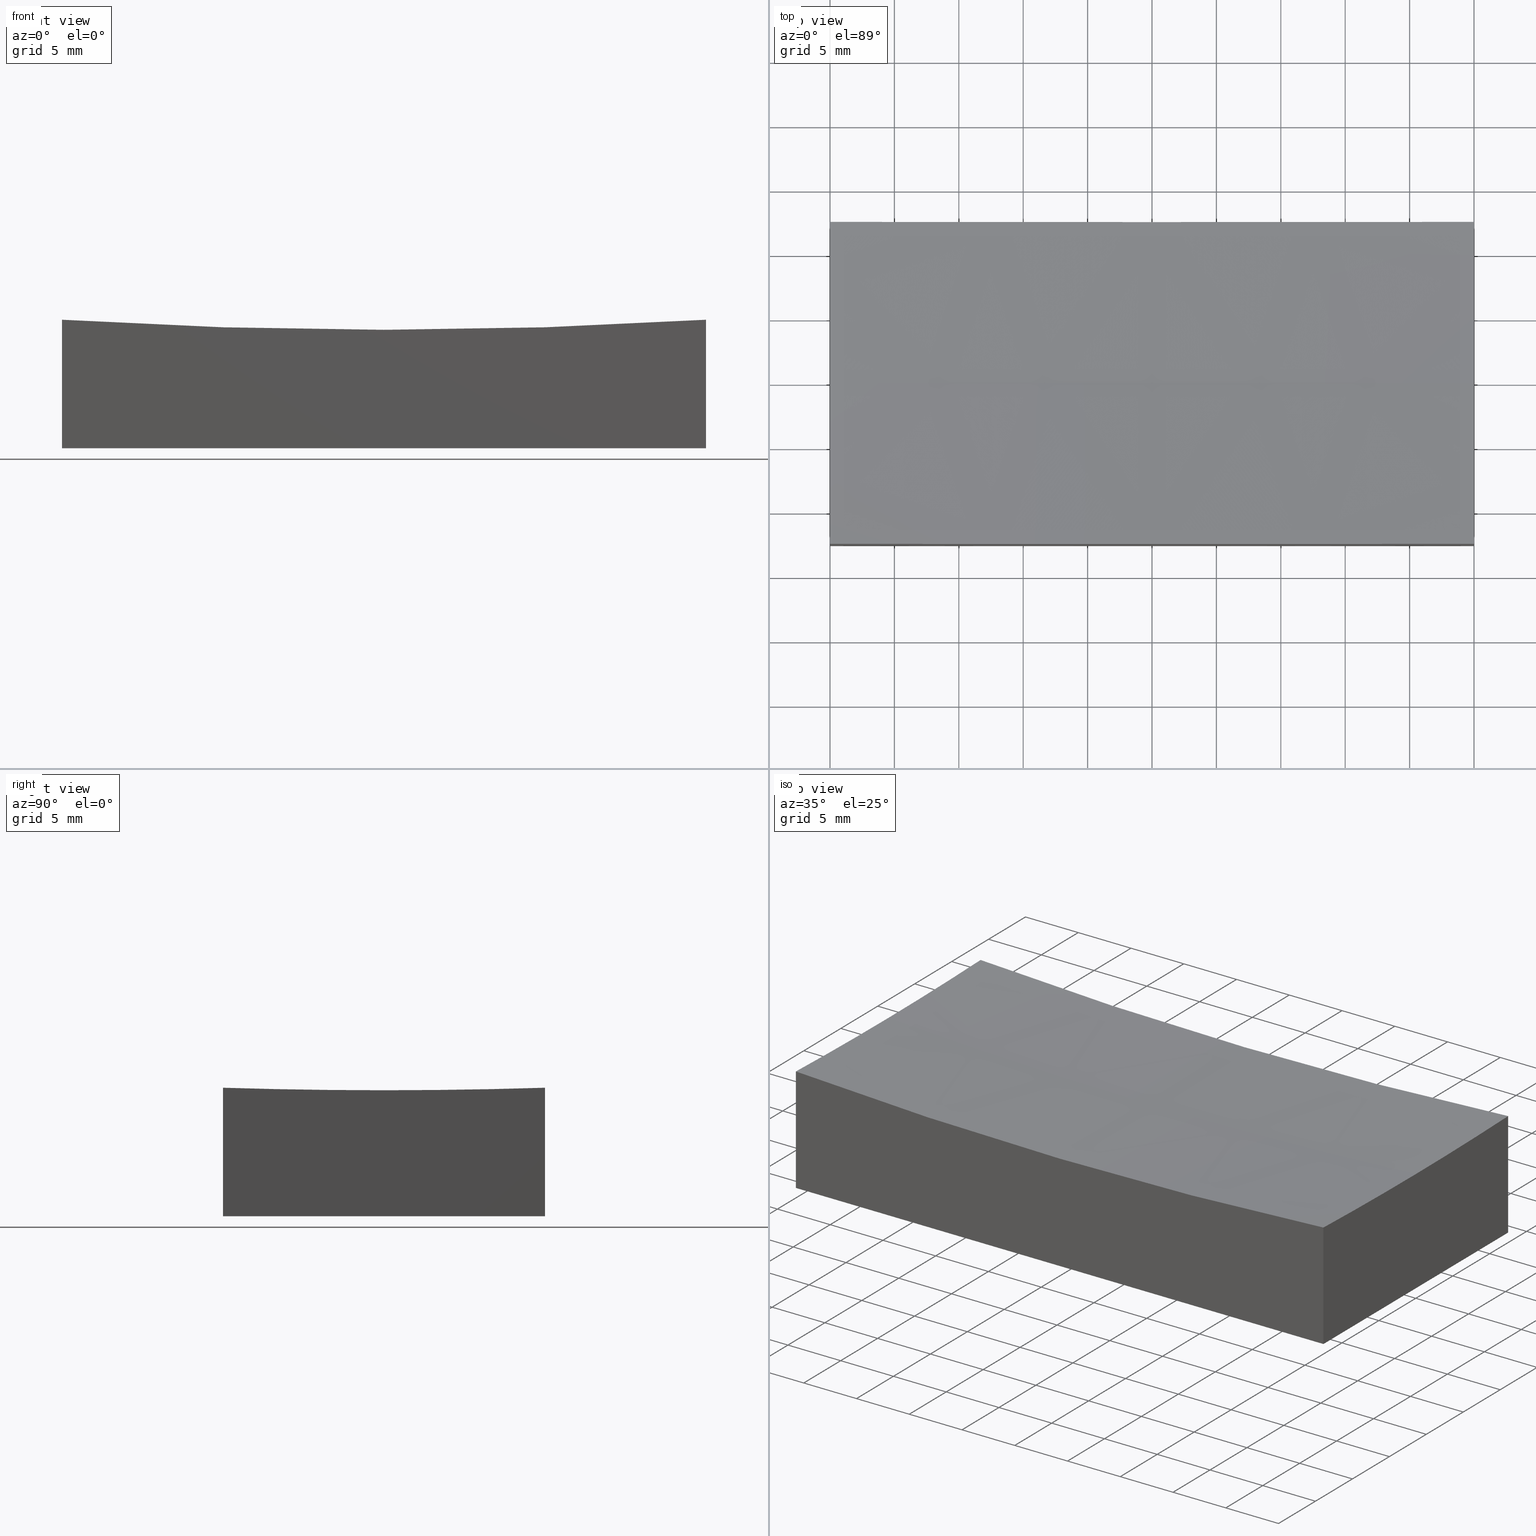
[diagram: canonical four-view strip — front | top / right | iso, engineering-drawing reading convention]
A machine part, canonical four-view strip (front | top / right | iso — engineering-drawing reading convention). The complete STEP part file that produces these views, byte-faithful:
ISO-10303-21;
HEADER;
FILE_DESCRIPTION (( 'STEP AP214' ),
    '1' );
FILE_NAME ('GM13-50x25-200.STEP',
    '2024-08-13T03:16:50',
    ( 'Windows User' ),
    ( 'P R C' ),
    'SwSTEP 2.0',
    'SolidWorks 2022',
    '' );
FILE_SCHEMA (( 'AUTOMOTIVE_DESIGN' ));
ENDSEC;

DATA;
#1 = CARTESIAN_POINT ( 'NONE',  ( -24.99999999999998934, -12.49999999999999645, 9.977757512190821743 ) ) ;
#2 = VERTEX_POINT ( 'NONE', #1 ) ;
#3 = DIRECTION ( 'NONE',  ( 1.000000000000000000, 1.387778780781445676E-16, -0.000000000000000000 ) ) ;
#4 = VECTOR ( 'NONE', #29, 1000.000000000000000 ) ;
#5 = ORIENTED_EDGE ( 'NONE', *, *, #248, .T. ) ;
#6 = FACE_OUTER_BOUND ( 'NONE', #196, .T. ) ;
#7 = AXIS2_PLACEMENT_3D ( 'NONE', #30, #205, #47 ) ;
#8 = FILL_AREA_STYLE ('',( #203 ) ) ;
#9 = CARTESIAN_POINT ( 'NONE',  ( -25.00000000000000000, -3.469446951953614189E-15, 409.0000000000000568 ) ) ;
#10 = ADVANCED_FACE ( 'NONE', ( #6 ), #21, .F. ) ;
#11 = DIRECTION ( 'NONE',  ( 1.000000000000000000, -2.775557561562891351E-16, -0.000000000000000000 ) ) ;
#12 = DIRECTION ( 'NONE',  ( -1.390497253084598109E-16, 1.000000000000000000, 0.000000000000000000 ) ) ;
#13 = CARTESIAN_POINT ( 'NONE',  ( 0.000000000000000000, 0.000000000000000000, 0.000000000000000000 ) ) ;
#14 = DIRECTION ( 'NONE',  ( 0.000000000000000000, 0.000000000000000000, -1.000000000000000000 ) ) ;
#15 = FACE_OUTER_BOUND ( 'NONE', #79, .T. ) ;
#16 = DIRECTION ( 'NONE',  ( -0.000000000000000000, 1.000000000000000000, -0.000000000000000000 ) ) ;
#17 = CIRCLE ( 'NONE', #7, 399.8046397929868476 ) ;
#18 = EDGE_LOOP ( 'NONE', ( #182, #52, #95, #116, #100 ) ) ;
#19 = CIRCLE ( 'NONE', #45, 399.2179855667828292 ) ;
#20 = VERTEX_POINT ( 'NONE', #219 ) ;
#21 = PLANE ( 'NONE',  #190 ) ;
#22 = AXIS2_PLACEMENT_3D ( 'NONE', #9, #103, #12 ) ;
#23 = SPHERICAL_SURFACE ( 'NONE', #201, 400.0000000000000000 ) ;
#24 = ORIENTED_EDGE ( 'NONE', *, *, #220, .F. ) ;
#25 = FACE_OUTER_BOUND ( 'NONE', #18, .T. ) ;
#26 = EDGE_CURVE ( 'NONE', #215, #217, #197, .T. ) ;
#27 = DIRECTION ( 'NONE',  ( 0.000000000000000000, -1.000000000000000000, 0.000000000000000000 ) ) ;
#28 = LINE ( 'NONE', #185, #241 ) ;
#29 = DIRECTION ( 'NONE',  ( 1.387778780781445676E-16, -1.000000000000000000, 0.000000000000000000 ) ) ;
#30 = CARTESIAN_POINT ( 'NONE',  ( 0.000000000000000000, -12.49999999999999645, 409.0000000000000568 ) ) ;
#31 = SURFACE_SIDE_STYLE ('',( #154 ) ) ;
#32 = ADVANCED_FACE ( 'NONE', ( #135 ), #180, .F. ) ;
#33 = EDGE_LOOP ( 'NONE', ( #136, #109, #128, #75, #161 ) ) ;
#34 = FACE_OUTER_BOUND ( 'NONE', #33, .T. ) ;
#35 = DIRECTION ( 'NONE',  ( -0.000000000000000000, -0.000000000000000000, -1.000000000000000000 ) ) ;
#36 = VERTEX_POINT ( 'NONE', #163 ) ;
#37 = APPLICATION_PROTOCOL_DEFINITION ( 'draft international standard', 'automotive_design', 1998, #175 ) ;
#38 = VERTEX_POINT ( 'NONE', #117 ) ;
#39 = FACE_OUTER_BOUND ( 'NONE', #194, .T. ) ;
#40 = DIRECTION ( 'NONE',  ( -0.000000000000000000, -0.000000000000000000, -1.000000000000000000 ) ) ;
#41 = CARTESIAN_POINT ( 'NONE',  ( 25.00000000000000355, 12.50000000000000000, 15.00000000000000000 ) ) ;
#42 = DIRECTION ( 'NONE',  ( 2.775557561562891351E-16, 1.000000000000000000, -0.000000000000000000 ) ) ;
#43 = PLANE ( 'NONE',  #122 ) ;
#44 =( LENGTH_UNIT ( ) NAMED_UNIT ( * ) SI_UNIT ( .MILLI., .METRE. ) );
#45 = AXIS2_PLACEMENT_3D ( 'NONE', #62, #125, #144 ) ;
#46 = CARTESIAN_POINT ( 'NONE',  ( -25.00000000000000000, -3.469446951953614189E-15, 409.0000000000000568 ) ) ;
#47 = DIRECTION ( 'NONE',  ( 1.154631945610162802E-14, 0.000000000000000000, 1.000000000000000000 ) ) ;
#48 = ORIENTED_EDGE ( 'NONE', *, *, #195, .T. ) ;
#49 = ADVANCED_BREP_SHAPE_REPRESENTATION ( 'GM13-50x25-200', ( #146, #183 ), #155 ) ;
#50 = ORIENTED_EDGE ( 'NONE', *, *, #208, .T. ) ;
#51 = CLOSED_SHELL ( 'NONE', ( #242, #32, #10, #115, #110, #77, #58 ) ) ;
#52 = ORIENTED_EDGE ( 'NONE', *, *, #26, .T. ) ;
#53 = UNCERTAINTY_MEASURE_WITH_UNIT (LENGTH_MEASURE( 1.000000000000000082E-05 ), #44, 'distance_accuracy_value', 'NONE');
#54 = CARTESIAN_POINT ( 'NONE',  ( 24.99999999999999645, -12.50000000000000000, 15.00000000000000000 ) ) ;
#55 = AXIS2_PLACEMENT_3D ( 'NONE', #138, #3, #76 ) ;
#56 = ORIENTED_EDGE ( 'NONE', *, *, #174, .T. ) ;
#57 = ORIENTED_EDGE ( 'NONE', *, *, #99, .T. ) ;
#58 = ADVANCED_FACE ( 'NONE', ( #34 ), #23, .F. ) ;
#59 = VERTEX_POINT ( 'NONE', #198 ) ;
#60 = COLOUR_RGB ( '',1.000000000000000000, 1.000000000000000000, 1.000000000000000000 ) ;
#61 = SURFACE_SIDE_STYLE ('',( #121 ) ) ;
#62 = CARTESIAN_POINT ( 'NONE',  ( 25.00000000000000000, -6.938893903907228378E-15, 409.0000000000000568 ) ) ;
#63 = PLANE ( 'NONE',  #88 ) ;
#64 = LINE ( 'NONE', #224, #153 ) ;
#65 = AXIS2_PLACEMENT_3D ( 'NONE', #67, #213, #158 ) ;
#66 = CIRCLE ( 'NONE', #218, 399.2179855667828292 ) ;
#67 = CARTESIAN_POINT ( 'NONE',  ( 0.000000000000000000, 0.000000000000000000, 409.0000000000000568 ) ) ;
#68 = EDGE_CURVE ( 'NONE', #159, #93, #141, .T. ) ;
#69 = CARTESIAN_POINT ( 'NONE',  ( 0.000000000000000000, 0.000000000000000000, 409.0000000000000568 ) ) ;
#70 = ORIENTED_EDGE ( 'NONE', *, *, #236, .F. ) ;
#71 = DIRECTION ( 'NONE',  ( 1.224646799147353207E-16, -1.000000000000000000, -1.194747633266363858E-35 ) ) ;
#72 = CARTESIAN_POINT ( 'NONE',  ( -24.99999999999999645, -12.50000000000000000, 15.00000000000000000 ) ) ;
#73 = PRODUCT_DEFINITION_CONTEXT ( 'detailed design', #175, 'design' ) ;
#74 = PRESENTATION_LAYER_ASSIGNMENT (  '', '', ( #235 ) ) ;
#75 = ORIENTED_EDGE ( 'NONE', *, *, #199, .T. ) ;
#76 = DIRECTION ( 'NONE',  ( -1.387778780781445676E-16, 1.000000000000000000, 0.000000000000000000 ) ) ;
#77 = ADVANCED_FACE ( 'NONE', ( #246 ), #63, .F. ) ;
#78 = PRODUCT_CONTEXT ( 'NONE', #227, 'mechanical' ) ;
#79 = EDGE_LOOP ( 'NONE', ( #240, #5, #24, #56, #50 ) ) ;
#80 = CIRCLE ( 'NONE', #214, 399.2179855667828292 ) ;
#81 = DIRECTION ( 'NONE',  ( 0.000000000000000000, 1.000000000000000000, 0.000000000000000000 ) ) ;
#82 = LINE ( 'NONE', #188, #148 ) ;
#83 = PLANE ( 'NONE',  #162 ) ;
#84 = CARTESIAN_POINT ( 'NONE',  ( 0.000000000000000000, 0.000000000000000000, 0.000000000000000000 ) ) ;
#85 = PRESENTATION_STYLE_ASSIGNMENT (( #132 ) ) ;
#86 = PRODUCT_DEFINITION_FORMATION_WITH_SPECIFIED_SOURCE ( '�κ�', '', #173, .NOT_KNOWN. ) ;
#87 = DIRECTION ( 'NONE',  ( -2.780994506169196219E-16, -1.000000000000000000, 0.000000000000000000 ) ) ;
#88 = AXIS2_PLACEMENT_3D ( 'NONE', #84, #228, #165 ) ;
#89 = VECTOR ( 'NONE', #225, 1000.000000000000000 ) ;
#90 =( NAMED_UNIT ( * ) SI_UNIT ( $, .STERADIAN. ) SOLID_ANGLE_UNIT ( ) );
#91 = PRODUCT_RELATED_PRODUCT_CATEGORY ( 'part', '', ( #173 ) ) ;
#92 = DIRECTION ( 'NONE',  ( 0.000000000000000000, -1.000000000000000000, -0.000000000000000000 ) ) ;
#93 = VERTEX_POINT ( 'NONE', #149 ) ;
#94 = ORIENTED_EDGE ( 'NONE', *, *, #107, .F. ) ;
#95 = ORIENTED_EDGE ( 'NONE', *, *, #157, .T. ) ;
#96 = DIRECTION ( 'NONE',  ( 0.000000000000000000, -0.000000000000000000, 1.000000000000000000 ) ) ;
#97 = VECTOR ( 'NONE', #35, 1000.000000000000000 ) ;
#98 = ORIENTED_EDGE ( 'NONE', *, *, #245, .F. ) ;
#99 = EDGE_CURVE ( 'NONE', #2, #20, #119, .T. ) ;
#100 = ORIENTED_EDGE ( 'NONE', *, *, #174, .F. ) ;
#101 = CARTESIAN_POINT ( 'NONE',  ( 25.00000000000000355, 12.50000000000000000, 15.00000000000000000 ) ) ;
#102 = CARTESIAN_POINT ( 'NONE',  ( 25.00000000000000355, 12.50000000000000000, 9.977757512190821743 ) ) ;
#103 = DIRECTION ( 'NONE',  ( -1.000000000000000000, -1.387778780781445676E-16, 0.000000000000000000 ) ) ;
#104 = SURFACE_STYLE_USAGE ( .BOTH. , #61 ) ;
#105 = CARTESIAN_POINT ( 'NONE',  ( -24.99999999999999645, -12.50000000000000000, 15.00000000000000000 ) ) ;
#106 = DIRECTION ( 'NONE',  ( 1.000000000000000000, 1.224646799147353207E-16, 0.000000000000000000 ) ) ;
#107 = EDGE_CURVE ( 'NONE', #20, #217, #28, .T. ) ;
#108 =( NAMED_UNIT ( * ) PLANE_ANGLE_UNIT ( ) SI_UNIT ( $, .RADIAN. ) );
#109 = ORIENTED_EDGE ( 'NONE', *, *, #245, .T. ) ;
#110 = ADVANCED_FACE ( 'NONE', ( #39 ), #43, .F. ) ;
#111 = VECTOR ( 'NONE', #40, 1000.000000000000000 ) ;
#112 = ORIENTED_EDGE ( 'NONE', *, *, #124, .F. ) ;
#113 = UNCERTAINTY_MEASURE_WITH_UNIT (LENGTH_MEASURE( 1.000000000000000082E-05 ), #231, 'distance_accuracy_value', 'NONE');
#114 = ORIENTED_EDGE ( 'NONE', *, *, #124, .T. ) ;
#115 = ADVANCED_FACE ( 'NONE', ( #25 ), #83, .F. ) ;
#116 = ORIENTED_EDGE ( 'NONE', *, *, #68, .F. ) ;
#117 = CARTESIAN_POINT ( 'NONE',  ( -25.00000000000000000, 12.50000000000000000, 9.977757512190821743 ) ) ;
#118 = VERTEX_POINT ( 'NONE', #184 ) ;
#119 = LINE ( 'NONE', #105, #111 ) ;
#120 = DIRECTION ( 'NONE',  ( -2.775557561562891351E-16, -1.000000000000000000, 0.000000000000000000 ) ) ;
#121 = SURFACE_STYLE_FILL_AREA ( #8 ) ;
#122 = AXIS2_PLACEMENT_3D ( 'NONE', #186, #27, #126 ) ;
#123 = AXIS2_PLACEMENT_3D ( 'NONE', #133, #16, #14 ) ;
#124 = EDGE_CURVE ( 'NONE', #36, #20, #166, .T. ) ;
#125 = DIRECTION ( 'NONE',  ( 1.000000000000000000, -2.775557561562891351E-16, -0.000000000000000000 ) ) ;
#126 = DIRECTION ( 'NONE',  ( 0.000000000000000000, -0.000000000000000000, -1.000000000000000000 ) ) ;
#127 = PRESENTATION_LAYER_ASSIGNMENT (  '', '', ( #150 ) ) ;
#128 = ORIENTED_EDGE ( 'NONE', *, *, #236, .T. ) ;
#129 = CIRCLE ( 'NONE', #233, 400.0000000000000000 ) ;
#130 = ORIENTED_EDGE ( 'NONE', *, *, #137, .F. ) ;
#131 = MECHANICAL_DESIGN_GEOMETRIC_PRESENTATION_REPRESENTATION (  '', ( #235 ), #145 ) ;
#132 = SURFACE_STYLE_USAGE ( .BOTH. , #31 ) ;
#133 = CARTESIAN_POINT ( 'NONE',  ( 0.000000000000000000, 12.50000000000000000, 409.0000000000000568 ) ) ;
#134 = ORIENTED_EDGE ( 'NONE', *, *, #99, .F. ) ;
#135 = FACE_OUTER_BOUND ( 'NONE', #210, .T. ) ;
#136 = ORIENTED_EDGE ( 'NONE', *, *, #248, .F. ) ;
#137 = EDGE_CURVE ( 'NONE', #93, #36, #82, .T. ) ;
#138 = CARTESIAN_POINT ( 'NONE',  ( -25.00000000000000000, 12.50000000000000000, 15.00000000000000000 ) ) ;
#139 = EDGE_CURVE ( 'NONE', #38, #59, #212, .T. ) ;
#140 = SHAPE_DEFINITION_REPRESENTATION ( #226, #49 ) ;
#141 = LINE ( 'NONE', #41, #249 ) ;
#142 =( LENGTH_UNIT ( ) NAMED_UNIT ( * ) SI_UNIT ( .MILLI., .METRE. ) );
#143 = DIRECTION ( 'NONE',  ( -0.000000000000000000, -0.000000000000000000, -1.000000000000000000 ) ) ;
#144 = DIRECTION ( 'NONE',  ( -2.780994506169196219E-16, -1.000000000000000000, 0.000000000000000000 ) ) ;
#145 =( GEOMETRIC_REPRESENTATION_CONTEXT ( 3 ) GLOBAL_UNCERTAINTY_ASSIGNED_CONTEXT ( ( #216 ) ) GLOBAL_UNIT_ASSIGNED_CONTEXT ( ( #142, #167, #202 ) ) REPRESENTATION_CONTEXT ( 'NONE', 'WORKASPACE' ) );
#146 = MANIFOLD_SOLID_BREP ( '�г�-��ת1', #51 ) ;
#147 = CARTESIAN_POINT ( 'NONE',  ( 25.00000000000000000, -6.938893903907228378E-15, 409.0000000000000568 ) ) ;
#148 = VECTOR ( 'NONE', #223, 1000.000000000000000 ) ;
#149 = CARTESIAN_POINT ( 'NONE',  ( 25.00000000000000355, 12.50000000000000000, 0.000000000000000000 ) ) ;
#150 = STYLED_ITEM ( 'NONE', ( #85 ), #49 ) ;
#151 = FILL_AREA_STYLE_COLOUR ( '', #60 ) ;
#152 = ORIENTED_EDGE ( 'NONE', *, *, #137, .T. ) ;
#153 = VECTOR ( 'NONE', #42, 1000.000000000000000 ) ;
#154 = SURFACE_STYLE_FILL_AREA ( #229 ) ;
#155 =( GEOMETRIC_REPRESENTATION_CONTEXT ( 3 ) GLOBAL_UNCERTAINTY_ASSIGNED_CONTEXT ( ( #53 ) ) GLOBAL_UNIT_ASSIGNED_CONTEXT ( ( #44, #108, #90 ) ) REPRESENTATION_CONTEXT ( 'NONE', 'WORKASPACE' ) );
#156 = ORIENTED_EDGE ( 'NONE', *, *, #107, .T. ) ;
#157 = EDGE_CURVE ( 'NONE', #217, #93, #64, .T. ) ;
#158 = DIRECTION ( 'NONE',  ( 0.000000000000000000, 0.000000000000000000, 1.000000000000000000 ) ) ;
#159 = VERTEX_POINT ( 'NONE', #102 ) ;
#160 = CIRCLE ( 'NONE', #65, 400.0000000000000000 ) ;
#161 = ORIENTED_EDGE ( 'NONE', *, *, #220, .T. ) ;
#162 = AXIS2_PLACEMENT_3D ( 'NONE', #101, #169, #120 ) ;
#163 = CARTESIAN_POINT ( 'NONE',  ( -25.00000000000000000, 12.50000000000000000, 0.000000000000000000 ) ) ;
#164 = CARTESIAN_POINT ( 'NONE',  ( 0.000000000000000000, 0.000000000000000000, 409.0000000000000568 ) ) ;
#165 = DIRECTION ( 'NONE',  ( 1.000000000000000000, 0.000000000000000000, 0.000000000000000000 ) ) ;
#166 = LINE ( 'NONE', #204, #4 ) ;
#167 =( NAMED_UNIT ( * ) PLANE_ANGLE_UNIT ( ) SI_UNIT ( $, .RADIAN. ) );
#168 = COLOUR_RGB ( '',1.000000000000000000, 1.000000000000000000, 1.000000000000000000 ) ;
#169 = DIRECTION ( 'NONE',  ( -1.000000000000000000, 2.775557561562891351E-16, 0.000000000000000000 ) ) ;
#170 =( NAMED_UNIT ( * ) PLANE_ANGLE_UNIT ( ) SI_UNIT ( $, .RADIAN. ) );
#171 = CIRCLE ( 'NONE', #123, 399.8046397929869045 ) ;
#172 = DIRECTION ( 'NONE',  ( -1.000000000000000000, -1.387778780781445676E-16, 0.000000000000000000 ) ) ;
#173 = PRODUCT ( 'GM13-50x25-200', 'GM13-50x25-200', '', ( #78 ) ) ;
#174 = EDGE_CURVE ( 'NONE', #118, #159, #19, .T. ) ;
#175 = APPLICATION_CONTEXT ( 'automotive_design' ) ;
#176 = CARTESIAN_POINT ( 'NONE',  ( 0.000000000000000000, 0.000000000000000000, 409.0000000000000568 ) ) ;
#177 = DIRECTION ( 'NONE',  ( 1.000000000000000000, 0.000000000000000000, 0.000000000000000000 ) ) ;
#178 = ORIENTED_EDGE ( 'NONE', *, *, #208, .F. ) ;
#179 = ORIENTED_EDGE ( 'NONE', *, *, #195, .F. ) ;
#180 = PLANE ( 'NONE',  #55 ) ;
#181 = ORIENTED_EDGE ( 'NONE', *, *, #139, .F. ) ;
#182 = ORIENTED_EDGE ( 'NONE', *, *, #199, .F. ) ;
#183 = AXIS2_PLACEMENT_3D ( 'NONE', #13, #251, #177 ) ;
#184 = CARTESIAN_POINT ( 'NONE',  ( 25.00000000000000000, 0.000000000000000000, 9.782014433217216975 ) ) ;
#185 = CARTESIAN_POINT ( 'NONE',  ( -24.99999999999999645, -12.50000000000000000, 0.000000000000000000 ) ) ;
#186 = CARTESIAN_POINT ( 'NONE',  ( -25.00000000000000000, 12.50000000000000000, 15.00000000000000000 ) ) ;
#187 = CARTESIAN_POINT ( 'NONE',  ( -25.00000000000000000, 12.50000000000000000, 15.00000000000000000 ) ) ;
#188 = CARTESIAN_POINT ( 'NONE',  ( -25.00000000000000000, 12.50000000000000000, 0.000000000000000000 ) ) ;
#189 = CARTESIAN_POINT ( 'NONE',  ( 2.445391256381599328E-14, 0.000000000000000000, 9.000000000000007105 ) ) ;
#190 = AXIS2_PLACEMENT_3D ( 'NONE', #72, #81, #96 ) ;
#191 =( NAMED_UNIT ( * ) SI_UNIT ( $, .STERADIAN. ) SOLID_ANGLE_UNIT ( ) );
#192 = AXIS2_PLACEMENT_3D ( 'NONE', #176, #92, #250 ) ;
#193 = MECHANICAL_DESIGN_GEOMETRIC_PRESENTATION_REPRESENTATION (  '', ( #150 ), #239 ) ;
#194 = EDGE_LOOP ( 'NONE', ( #178, #238, #152, #179 ) ) ;
#195 = EDGE_CURVE ( 'NONE', #38, #36, #247, .T. ) ;
#196 = EDGE_LOOP ( 'NONE', ( #70, #57, #156, #230 ) ) ;
#197 = LINE ( 'NONE', #54, #97 ) ;
#198 = CARTESIAN_POINT ( 'NONE',  ( -25.00000000000000000, -3.061616997868383043E-15, 9.782014433217216975 ) ) ;
#199 = EDGE_CURVE ( 'NONE', #215, #118, #66, .T. ) ;
#200 = DIRECTION ( 'NONE',  ( 1.000000000000000000, 0.000000000000000000, 0.000000000000000000 ) ) ;
#201 = AXIS2_PLACEMENT_3D ( 'NONE', #164, #237, #243 ) ;
#202 =( NAMED_UNIT ( * ) SI_UNIT ( $, .STERADIAN. ) SOLID_ANGLE_UNIT ( ) );
#203 = FILL_AREA_STYLE_COLOUR ( '', #168 ) ;
#204 = CARTESIAN_POINT ( 'NONE',  ( -25.00000000000000000, 12.50000000000000000, 0.000000000000000000 ) ) ;
#205 = DIRECTION ( 'NONE',  ( -0.000000000000000000, -1.000000000000000000, -0.000000000000000000 ) ) ;
#206 = DIRECTION ( 'NONE',  ( -1.390497253084598109E-16, 1.000000000000000000, 0.000000000000000000 ) ) ;
#207 = ORIENTED_EDGE ( 'NONE', *, *, #157, .F. ) ;
#208 = EDGE_CURVE ( 'NONE', #159, #38, #171, .T. ) ;
#209 = CARTESIAN_POINT ( 'NONE',  ( 24.99999999999999645, -12.50000000000000000, 0.000000000000000000 ) ) ;
#210 = EDGE_LOOP ( 'NONE', ( #181, #48, #114, #134, #98 ) ) ;
#211 = CARTESIAN_POINT ( 'NONE',  ( 24.99999999999999645, -12.50000000000000000, 9.977757512190766676 ) ) ;
#212 = CIRCLE ( 'NONE', #22, 399.2179855667828292 ) ;
#213 = DIRECTION ( 'NONE',  ( 0.000000000000000000, 1.000000000000000000, -0.000000000000000000 ) ) ;
#214 = AXIS2_PLACEMENT_3D ( 'NONE', #46, #172, #206 ) ;
#215 = VERTEX_POINT ( 'NONE', #211 ) ;
#216 = UNCERTAINTY_MEASURE_WITH_UNIT (LENGTH_MEASURE( 1.000000000000000082E-05 ), #142, 'distance_accuracy_value', 'NONE');
#217 = VERTEX_POINT ( 'NONE', #209 ) ;
#218 = AXIS2_PLACEMENT_3D ( 'NONE', #147, #11, #87 ) ;
#219 = CARTESIAN_POINT ( 'NONE',  ( -24.99999999999999645, -12.50000000000000000, 0.000000000000000000 ) ) ;
#220 = EDGE_CURVE ( 'NONE', #118, #221, #160, .T. ) ;
#221 = VERTEX_POINT ( 'NONE', #189 ) ;
#222 = EDGE_LOOP ( 'NONE', ( #112, #130, #207, #94 ) ) ;
#223 = DIRECTION ( 'NONE',  ( -1.000000000000000000, -0.000000000000000000, -0.000000000000000000 ) ) ;
#224 = CARTESIAN_POINT ( 'NONE',  ( 25.00000000000000355, 12.50000000000000000, 0.000000000000000000 ) ) ;
#225 = DIRECTION ( 'NONE',  ( -0.000000000000000000, -0.000000000000000000, -1.000000000000000000 ) ) ;
#226 = PRODUCT_DEFINITION_SHAPE ( 'NONE', 'NONE',  #232 ) ;
#227 = APPLICATION_CONTEXT ( 'automotive_design' ) ;
#228 = DIRECTION ( 'NONE',  ( -0.000000000000000000, 0.000000000000000000, 1.000000000000000000 ) ) ;
#229 = FILL_AREA_STYLE ('',( #151 ) ) ;
#230 = ORIENTED_EDGE ( 'NONE', *, *, #26, .F. ) ;
#231 =( LENGTH_UNIT ( ) NAMED_UNIT ( * ) SI_UNIT ( .MILLI., .METRE. ) );
#232 = PRODUCT_DEFINITION ( 'δ֪', '', #86, #73 ) ;
#233 = AXIS2_PLACEMENT_3D ( 'NONE', #69, #71, #106 ) ;
#234 = SPHERICAL_SURFACE ( 'NONE', #192, 400.0000000000000000 ) ;
#235 = STYLED_ITEM ( 'NONE', ( #244 ), #146 ) ;
#236 = EDGE_CURVE ( 'NONE', #2, #215, #17, .T. ) ;
#237 = DIRECTION ( 'NONE',  ( 0.000000000000000000, -1.000000000000000000, -0.000000000000000000 ) ) ;
#238 = ORIENTED_EDGE ( 'NONE', *, *, #68, .T. ) ;
#239 =( GEOMETRIC_REPRESENTATION_CONTEXT ( 3 ) GLOBAL_UNCERTAINTY_ASSIGNED_CONTEXT ( ( #113 ) ) GLOBAL_UNIT_ASSIGNED_CONTEXT ( ( #231, #170, #191 ) ) REPRESENTATION_CONTEXT ( 'NONE', 'WORKASPACE' ) );
#240 = ORIENTED_EDGE ( 'NONE', *, *, #139, .T. ) ;
#241 = VECTOR ( 'NONE', #200, 1000.000000000000000 ) ;
#242 = ADVANCED_FACE ( 'NONE', ( #15 ), #234, .F. ) ;
#243 = DIRECTION ( 'NONE',  ( 1.000000000000000000, 0.000000000000000000, 0.000000000000000000 ) ) ;
#244 = PRESENTATION_STYLE_ASSIGNMENT (( #104 ) ) ;
#245 = EDGE_CURVE ( 'NONE', #59, #2, #80, .T. ) ;
#246 = FACE_OUTER_BOUND ( 'NONE', #222, .T. ) ;
#247 = LINE ( 'NONE', #187, #89 ) ;
#248 = EDGE_CURVE ( 'NONE', #59, #221, #129, .T. ) ;
#249 = VECTOR ( 'NONE', #143, 1000.000000000000000 ) ;
#250 = DIRECTION ( 'NONE',  ( 1.000000000000000000, 0.000000000000000000, 0.000000000000000000 ) ) ;
#251 = DIRECTION ( 'NONE',  ( 0.000000000000000000, 0.000000000000000000, 1.000000000000000000 ) ) ;
#252 = APPLICATION_PROTOCOL_DEFINITION ( 'draft international standard', 'automotive_design', 1998, #227 ) ;
ENDSEC;
END-ISO-10303-21;
